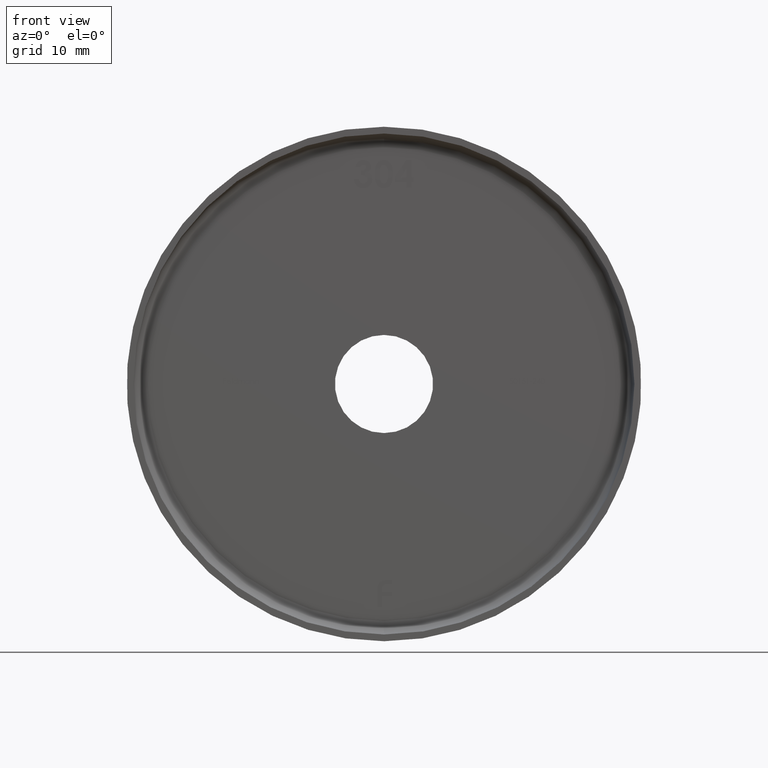
[diagram: clean part render]
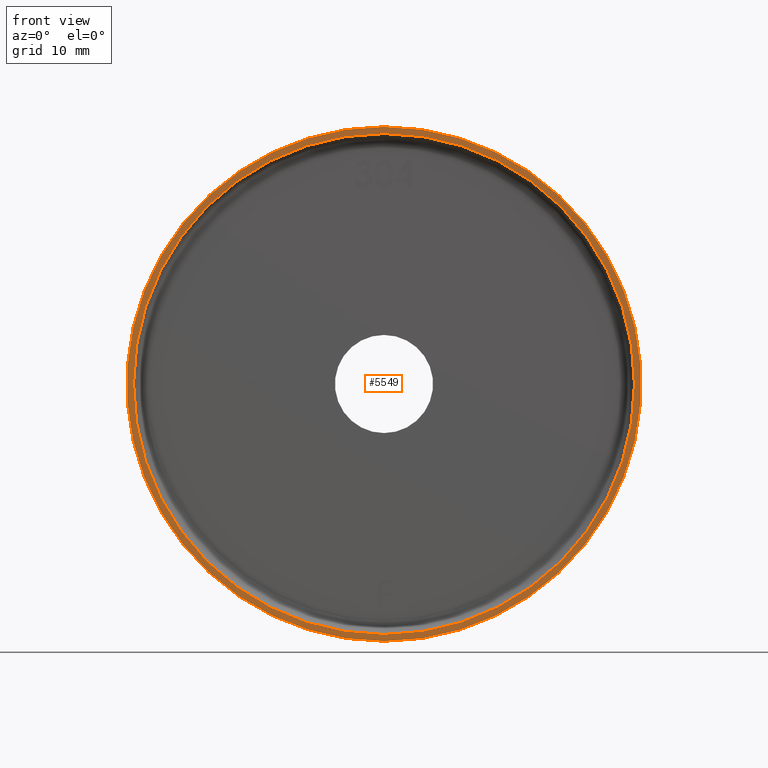
[diagram: same view with one face highlighted and labeled with its STEP entity id]
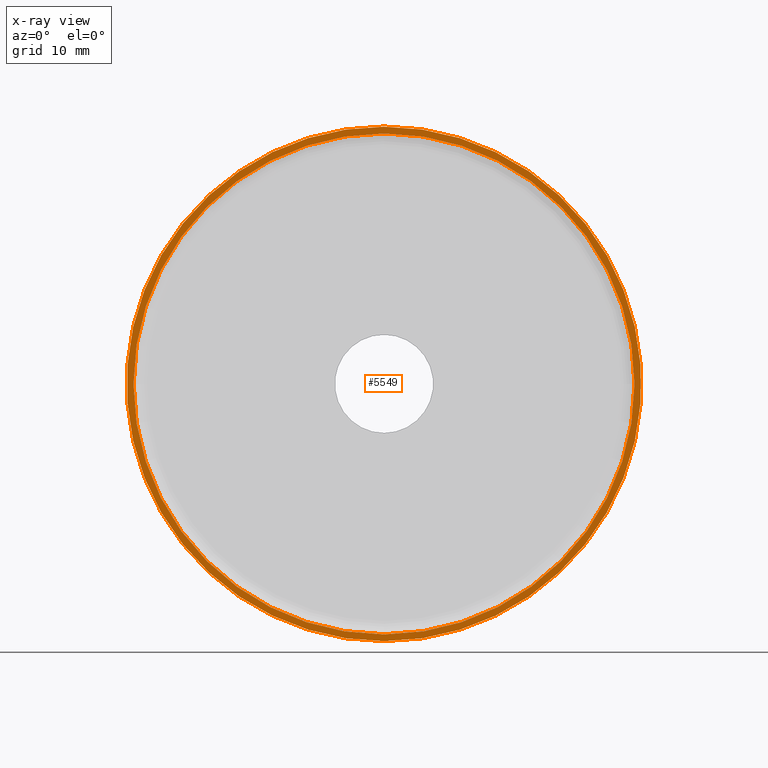
[diagram: x-ray of the same camera — body ghosted, the highlighted face saturated]
A machine part, front view. The second image highlights one B-rep face of the part: STEP entity #5549.
The next image is the same camera in x-ray: the body ghosted, the highlighted face saturated — about 0% of this face is hidden behind the body in this view.
In plain terms, the highlighted planar face has unit normal (0, -1, -0).
Its self-contained STEP definition (entity closure, byte-faithful):
#740 = AXIS2_PLACEMENT_3D ( 'NONE', #8298, #3611, #5725 ) ;
#1030 = DIRECTION ( 'NONE',  ( 0.000000000000000000, 0.000000000000000000, -1.000000000000000000 ) ) ;
#1050 = CIRCLE ( 'NONE', #7910, 38.00000000000000711 ) ;
#1377 = DIRECTION ( 'NONE',  ( 0.000000000000000000, 0.000000000000000000, -1.000000000000000000 ) ) ;
#1517 = CARTESIAN_POINT ( 'NONE',  ( 37.00000000000000711, -6.123233995736766036E-17, 0.000000000000000000 ) ) ;
#1724 = DIRECTION ( 'NONE',  ( 0.000000000000000000, 0.000000000000000000, -1.000000000000000000 ) ) ;
#1807 = VERTEX_POINT ( 'NONE', #3557 ) ;
#1896 = VERTEX_POINT ( 'NONE', #8551 ) ;
#2270 = DIRECTION ( 'NONE',  ( -0.000000000000000000, -1.000000000000000000, -0.000000000000000000 ) ) ;
#2554 = CIRCLE ( 'NONE', #6639, 38.00000000000000711 ) ;
#2611 = EDGE_CURVE ( 'NONE', #5303, #1807, #1050, .T. ) ;
#3373 = AXIS2_PLACEMENT_3D ( 'NONE', #1517, #10920, #10975 ) ;
#3557 = CARTESIAN_POINT ( 'NONE',  ( 0.000000000000000000, 0.000000000000000000, -38.00000000000000711 ) ) ;
#3603 = EDGE_LOOP ( 'NONE', ( #12663, #9407 ) ) ;
#3611 = DIRECTION ( 'NONE',  ( -0.000000000000000000, -1.000000000000000000, -0.000000000000000000 ) ) ;
#5248 = CARTESIAN_POINT ( 'NONE',  ( 0.000000000000000000, 0.000000000000000000, 0.000000000000000000 ) ) ;
#5277 = CARTESIAN_POINT ( 'NONE',  ( 4.653657836759942730E-15, 0.000000000000000000, 38.00000000000000711 ) ) ;
#5303 = VERTEX_POINT ( 'NONE', #5277 ) ;
#5549 = ADVANCED_FACE ( 'NONE', ( #10460, #8434 ), #9633, .T. ) ;
#5725 = DIRECTION ( 'NONE',  ( 0.000000000000000000, 0.000000000000000000, -1.000000000000000000 ) ) ;
#5990 = CARTESIAN_POINT ( 'NONE',  ( 0.000000000000000000, -1.224646799147353207E-16, -37.00000000000000711 ) ) ;
#6608 = DIRECTION ( 'NONE',  ( -0.000000000000000000, -1.000000000000000000, -0.000000000000000000 ) ) ;
#6639 = AXIS2_PLACEMENT_3D ( 'NONE', #6945, #2270, #1030 ) ;
#6945 = CARTESIAN_POINT ( 'NONE',  ( 0.000000000000000000, 0.000000000000000000, 0.000000000000000000 ) ) ;
#7069 = EDGE_CURVE ( 'NONE', #1807, #5303, #2554, .T. ) ;
#7144 = VERTEX_POINT ( 'NONE', #5990 ) ;
#7910 = AXIS2_PLACEMENT_3D ( 'NONE', #5248, #6608, #1724 ) ;
#8298 = CARTESIAN_POINT ( 'NONE',  ( 0.000000000000000000, -1.224646799147353207E-16, 0.000000000000000000 ) ) ;
#8434 = FACE_BOUND ( 'NONE', #3603, .T. ) ;
#8551 = CARTESIAN_POINT ( 'NONE',  ( 4.531193156845207581E-15, -1.224646799147353207E-16, 37.00000000000000711 ) ) ;
#9407 = ORIENTED_EDGE ( 'NONE', *, *, #12095, .F. ) ;
#9633 = PLANE ( 'NONE',  #3373 ) ;
#10434 = EDGE_CURVE ( 'NONE', #7144, #1896, #14428, .T. ) ;
#10460 = FACE_OUTER_BOUND ( 'NONE', #14082, .T. ) ;
#10920 = DIRECTION ( 'NONE',  ( 0.000000000000000000, -1.000000000000000000, -0.000000000000000000 ) ) ;
#10975 = DIRECTION ( 'NONE',  ( 0.000000000000000000, 0.000000000000000000, -1.000000000000000000 ) ) ;
#11242 = ORIENTED_EDGE ( 'NONE', *, *, #7069, .T. ) ;
#11475 = AXIS2_PLACEMENT_3D ( 'NONE', #14263, #11931, #1377 ) ;
#11931 = DIRECTION ( 'NONE',  ( -0.000000000000000000, -1.000000000000000000, -0.000000000000000000 ) ) ;
#12095 = EDGE_CURVE ( 'NONE', #1896, #7144, #13873, .T. ) ;
#12663 = ORIENTED_EDGE ( 'NONE', *, *, #10434, .F. ) ;
#13873 = CIRCLE ( 'NONE', #11475, 37.00000000000000711 ) ;
#14082 = EDGE_LOOP ( 'NONE', ( #11242, #14657 ) ) ;
#14263 = CARTESIAN_POINT ( 'NONE',  ( 0.000000000000000000, -1.224646799147353207E-16, 0.000000000000000000 ) ) ;
#14428 = CIRCLE ( 'NONE', #740, 37.00000000000000711 ) ;
#14657 = ORIENTED_EDGE ( 'NONE', *, *, #2611, .T. ) ;